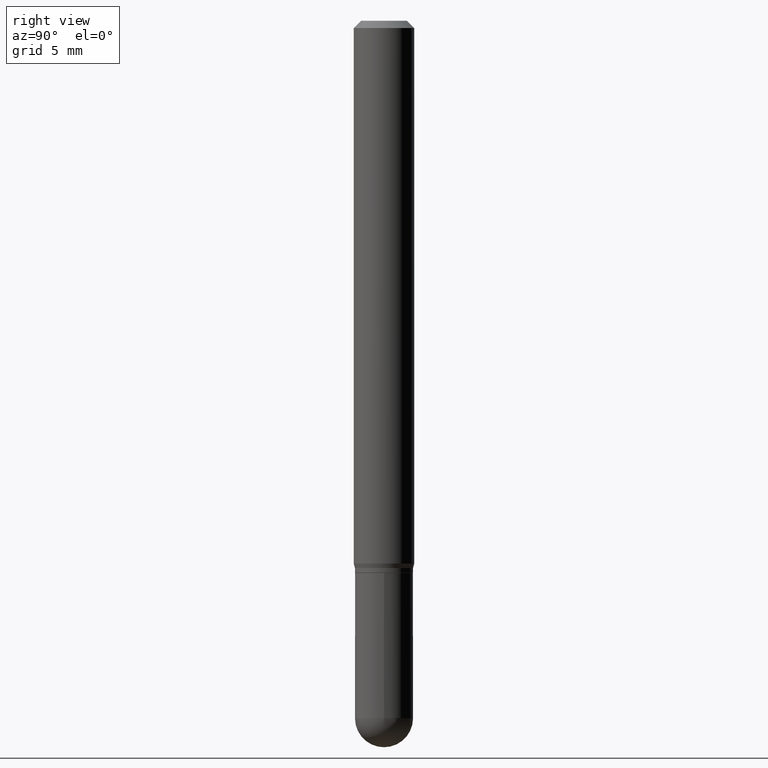
[diagram: clean part render]
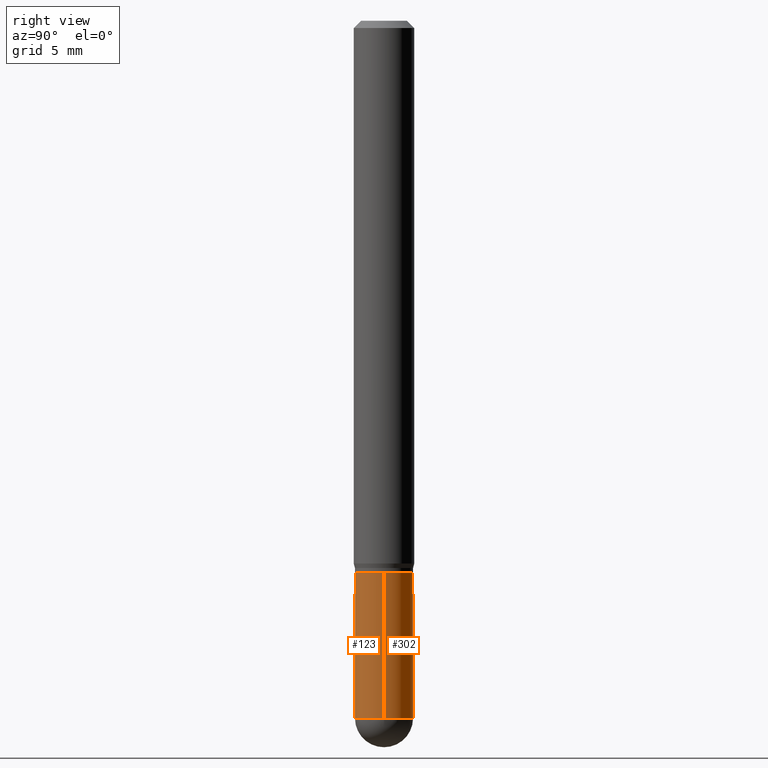
[diagram: same view with one multi-face feature highlighted, each face labeled with its STEP entity id]
A machine part, right view. The highlighted faces form ONE feature: a constant-radius fillet chain: 2 tangent blend faces with common blend radius 1.524 mm. The faces share edges in the B-rep.
Their STEP definitions:
[1] entity #123 (Cylinder):
#4 = VERTEX_POINT ( 'NONE', #493 ) ;
#5 = CARTESIAN_POINT ( 'NONE',  ( -0.06000000000000001166, 4.263256414560601944E-16, -2.951361054152943763E-30 ) ) ;
#11 = CARTESIAN_POINT ( 'NONE',  ( 0.06000000000000001166, -4.189777606611760914E-16, 2.925706065477562106E-30 ) ) ;
#38 = AXIS2_PLACEMENT_3D ( 'NONE', #46, #122, #357 ) ;
#41 = DIRECTION ( 'NONE',  ( -2.445468806185136597E-29, 3.491481338843145583E-15, 1.000000000000000000 ) ) ;
#42 = EDGE_CURVE ( 'NONE', #4, #379, #401, .T. ) ;
#46 = CARTESIAN_POINT ( 'NONE',  ( 0.000000000000000000, 0.000000000000000000, 0.000000000000000000 ) ) ;
#51 = CARTESIAN_POINT ( 'NONE',  ( -0.05999999999999999778, -4.077685285651597789E-15, -1.140000000000000124 ) ) ;
#64 = AXIS2_PLACEMENT_3D ( 'NONE', #239, #310, #274 ) ;
#82 = EDGE_CURVE ( 'NONE', #228, #4, #306, .T. ) ;
#88 = EDGE_CURVE ( 'NONE', #379, #417, #156, .T. ) ;
#96 = DIRECTION ( 'NONE',  ( 1.000000000000000000, -6.982962677686268288E-15, 0.000000000000000000 ) ) ;
#99 = CARTESIAN_POINT ( 'NONE',  ( 2.787834439051055989E-29, -3.980288726281186698E-15, -1.140000000000000124 ) ) ;
#122 = DIRECTION ( 'NONE',  ( -2.445468806185136597E-29, 3.491481338843145583E-15, 1.000000000000000000 ) ) ;
#123 = ADVANCED_FACE ( 'NONE', ( #244 ), #360, .T. ) ;
#156 = LINE ( 'NONE', #11, #451 ) ;
#164 = CARTESIAN_POINT ( 'NONE',  ( 3.521475080906597305E-29, -5.027733127934130649E-15, -1.440000000000000169 ) ) ;
#171 = DIRECTION ( 'NONE',  ( -2.445468806185136877E-29, 3.491481338843145188E-15, 1.000000000000000000 ) ) ;
#201 = DIRECTION ( 'NONE',  ( 1.000000000000000000, -6.982962677686266711E-15, 0.000000000000000000 ) ) ;
#214 = EDGE_CURVE ( 'NONE', #228, #237, #394, .T. ) ;
#222 = EDGE_CURVE ( 'NONE', #237, #417, #282, .T. ) ;
#228 = VERTEX_POINT ( 'NONE', #444 ) ;
#237 = VERTEX_POINT ( 'NONE', #51 ) ;
#239 = CARTESIAN_POINT ( 'NONE',  ( 3.521475080906597305E-29, -5.027733127934130649E-15, -1.440000000000000169 ) ) ;
#244 = FACE_OUTER_BOUND ( 'NONE', #475, .T. ) ;
#253 = ORIENTED_EDGE ( 'NONE', *, *, #82, .T. ) ;
#274 = DIRECTION ( 'NONE',  ( 1.000000000000000000, -6.982962677686266711E-15, 0.000000000000000000 ) ) ;
#282 = CIRCLE ( 'NONE', #476, 0.05999999999999999778 ) ;
#306 = CIRCLE ( 'NONE', #362, 0.06000000000000001166 ) ;
#308 = VECTOR ( 'NONE', #171, 39.37007874015748143 ) ;
#310 = DIRECTION ( 'NONE',  ( -2.445468806185136597E-29, 3.491481338843145583E-15, 1.000000000000000000 ) ) ;
#321 = ORIENTED_EDGE ( 'NONE', *, *, #88, .T. ) ;
#325 = DIRECTION ( 'NONE',  ( -2.445468806185136877E-29, 3.491481338843145188E-15, 1.000000000000000000 ) ) ;
#352 = CARTESIAN_POINT ( 'NONE',  ( 0.05999999999999999778, -4.399266486942362543E-15, -1.140000000000000124 ) ) ;
#357 = DIRECTION ( 'NONE',  ( 1.000000000000000000, -6.982962677686266711E-15, 4.876176775795935793E-29 ) ) ;
#360 = CYLINDRICAL_SURFACE ( 'NONE', #38, 0.06000000000000001166 ) ;
#362 = AXIS2_PLACEMENT_3D ( 'NONE', #164, #41, #201 ) ;
#371 = DIRECTION ( 'NONE',  ( -2.445468806185136597E-29, 3.491481338843145583E-15, 1.000000000000000000 ) ) ;
#379 = VERTEX_POINT ( 'NONE', #465 ) ;
#394 = LINE ( 'NONE', #5, #308 ) ;
#401 = CIRCLE ( 'NONE', #64, 0.06000000000000001166 ) ;
#417 = VERTEX_POINT ( 'NONE', #352 ) ;
#423 = ORIENTED_EDGE ( 'NONE', *, *, #42, .T. ) ;
#444 = CARTESIAN_POINT ( 'NONE',  ( -0.06000000000000001166, -4.077685285651599366E-15, -1.440000000000000169 ) ) ;
#446 = ORIENTED_EDGE ( 'NONE', *, *, #214, .F. ) ;
#451 = VECTOR ( 'NONE', #325, 39.37007874015748143 ) ;
#456 = ORIENTED_EDGE ( 'NONE', *, *, #222, .F. ) ;
#465 = CARTESIAN_POINT ( 'NONE',  ( 0.06000000000000001166, -4.922988687768835701E-15, -1.440000000000000169 ) ) ;
#475 = EDGE_LOOP ( 'NONE', ( #446, #253, #423, #321, #456 ) ) ;
#476 = AXIS2_PLACEMENT_3D ( 'NONE', #99, #371, #96 ) ;
#493 = CARTESIAN_POINT ( 'NONE',  ( -4.263256414560247449E-16, -0.06000000000000501460, -1.439999999999999947 ) ) ;
[2] entity #302 (Cylinder):
#5 = CARTESIAN_POINT ( 'NONE',  ( -0.06000000000000001166, 4.263256414560601944E-16, -2.951361054152943763E-30 ) ) ;
#9 = AXIS2_PLACEMENT_3D ( 'NONE', #135, #411, #301 ) ;
#11 = CARTESIAN_POINT ( 'NONE',  ( 0.06000000000000001166, -4.189777606611760914E-16, 2.925706065477562106E-30 ) ) ;
#16 = EDGE_CURVE ( 'NONE', #379, #372, #134, .T. ) ;
#35 = CARTESIAN_POINT ( 'NONE',  ( 4.189777606612110478E-16, 0.05999999999999495320, -1.440000000000000391 ) ) ;
#48 = EDGE_CURVE ( 'NONE', #417, #237, #177, .T. ) ;
#51 = CARTESIAN_POINT ( 'NONE',  ( -0.05999999999999999778, -4.077685285651597789E-15, -1.140000000000000124 ) ) ;
#80 = ORIENTED_EDGE ( 'NONE', *, *, #88, .F. ) ;
#84 = DIRECTION ( 'NONE',  ( 1.000000000000000000, -6.982962677686266711E-15, 0.000000000000000000 ) ) ;
#88 = EDGE_CURVE ( 'NONE', #379, #417, #156, .T. ) ;
#103 = DIRECTION ( 'NONE',  ( -2.445468806185136597E-29, 3.491481338843145583E-15, 1.000000000000000000 ) ) ;
#121 = DIRECTION ( 'NONE',  ( -2.445468806185136597E-29, 3.491481338843145583E-15, 1.000000000000000000 ) ) ;
#133 = CARTESIAN_POINT ( 'NONE',  ( 3.521475080906597305E-29, -5.027733127934130649E-15, -1.440000000000000169 ) ) ;
#134 = CIRCLE ( 'NONE', #461, 0.06000000000000001166 ) ;
#135 = CARTESIAN_POINT ( 'NONE',  ( 0.000000000000000000, 0.000000000000000000, 0.000000000000000000 ) ) ;
#154 = EDGE_CURVE ( 'NONE', #372, #228, #402, .T. ) ;
#156 = LINE ( 'NONE', #11, #451 ) ;
#169 = ORIENTED_EDGE ( 'NONE', *, *, #214, .T. ) ;
#171 = DIRECTION ( 'NONE',  ( -2.445468806185136877E-29, 3.491481338843145188E-15, 1.000000000000000000 ) ) ;
#177 = CIRCLE ( 'NONE', #355, 0.05999999999999999778 ) ;
#204 = ORIENTED_EDGE ( 'NONE', *, *, #16, .T. ) ;
#214 = EDGE_CURVE ( 'NONE', #228, #237, #394, .T. ) ;
#228 = VERTEX_POINT ( 'NONE', #444 ) ;
#237 = VERTEX_POINT ( 'NONE', #51 ) ;
#260 = CYLINDRICAL_SURFACE ( 'NONE', #9, 0.06000000000000001166 ) ;
#285 = CARTESIAN_POINT ( 'NONE',  ( 2.787834439051055989E-29, -3.980288726281186698E-15, -1.140000000000000124 ) ) ;
#294 = ORIENTED_EDGE ( 'NONE', *, *, #154, .T. ) ;
#299 = DIRECTION ( 'NONE',  ( 1.000000000000000000, -6.982962677686266711E-15, 0.000000000000000000 ) ) ;
#301 = DIRECTION ( 'NONE',  ( 1.000000000000000000, -6.982962677686266711E-15, 4.876176775795935793E-29 ) ) ;
#302 = ADVANCED_FACE ( 'NONE', ( #494 ), #260, .T. ) ;
#303 = EDGE_LOOP ( 'NONE', ( #294, #169, #369, #80, #204 ) ) ;
#308 = VECTOR ( 'NONE', #171, 39.37007874015748143 ) ;
#325 = DIRECTION ( 'NONE',  ( -2.445468806185136877E-29, 3.491481338843145188E-15, 1.000000000000000000 ) ) ;
#352 = CARTESIAN_POINT ( 'NONE',  ( 0.05999999999999999778, -4.399266486942362543E-15, -1.140000000000000124 ) ) ;
#355 = AXIS2_PLACEMENT_3D ( 'NONE', #285, #406, #441 ) ;
#369 = ORIENTED_EDGE ( 'NONE', *, *, #48, .F. ) ;
#372 = VERTEX_POINT ( 'NONE', #35 ) ;
#379 = VERTEX_POINT ( 'NONE', #465 ) ;
#394 = LINE ( 'NONE', #5, #308 ) ;
#402 = CIRCLE ( 'NONE', #462, 0.06000000000000001166 ) ;
#406 = DIRECTION ( 'NONE',  ( -2.445468806185136597E-29, 3.491481338843145583E-15, 1.000000000000000000 ) ) ;
#411 = DIRECTION ( 'NONE',  ( -2.445468806185136597E-29, 3.491481338843145583E-15, 1.000000000000000000 ) ) ;
#417 = VERTEX_POINT ( 'NONE', #352 ) ;
#441 = DIRECTION ( 'NONE',  ( 1.000000000000000000, -6.982962677686268288E-15, 0.000000000000000000 ) ) ;
#444 = CARTESIAN_POINT ( 'NONE',  ( -0.06000000000000001166, -4.077685285651599366E-15, -1.440000000000000169 ) ) ;
#451 = VECTOR ( 'NONE', #325, 39.37007874015748143 ) ;
#461 = AXIS2_PLACEMENT_3D ( 'NONE', #133, #103, #299 ) ;
#462 = AXIS2_PLACEMENT_3D ( 'NONE', #477, #121, #84 ) ;
#465 = CARTESIAN_POINT ( 'NONE',  ( 0.06000000000000001166, -4.922988687768835701E-15, -1.440000000000000169 ) ) ;
#477 = CARTESIAN_POINT ( 'NONE',  ( 3.521475080906597305E-29, -5.027733127934130649E-15, -1.440000000000000169 ) ) ;
#494 = FACE_OUTER_BOUND ( 'NONE', #303, .T. ) ;